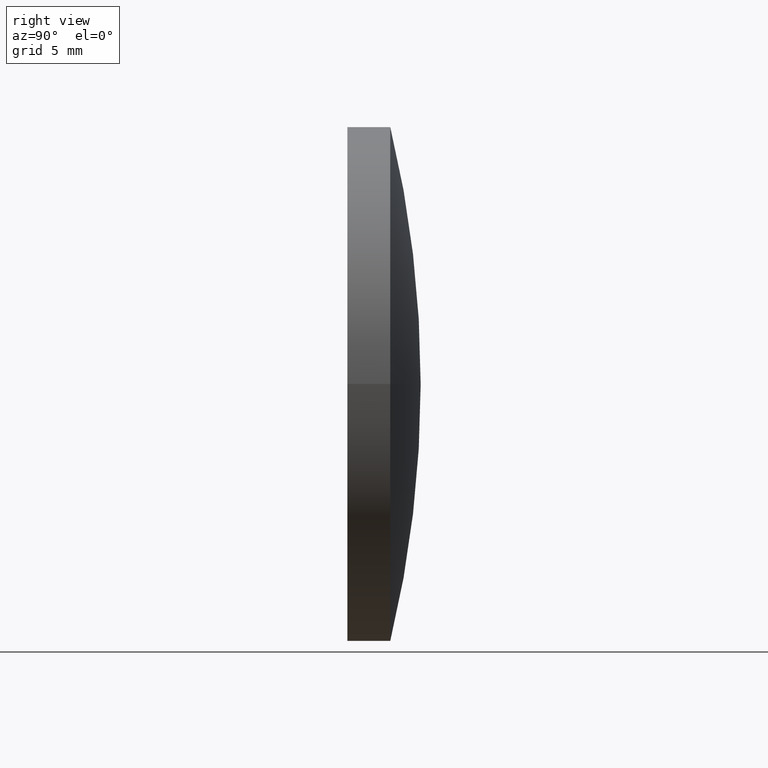
[diagram: clean part render]
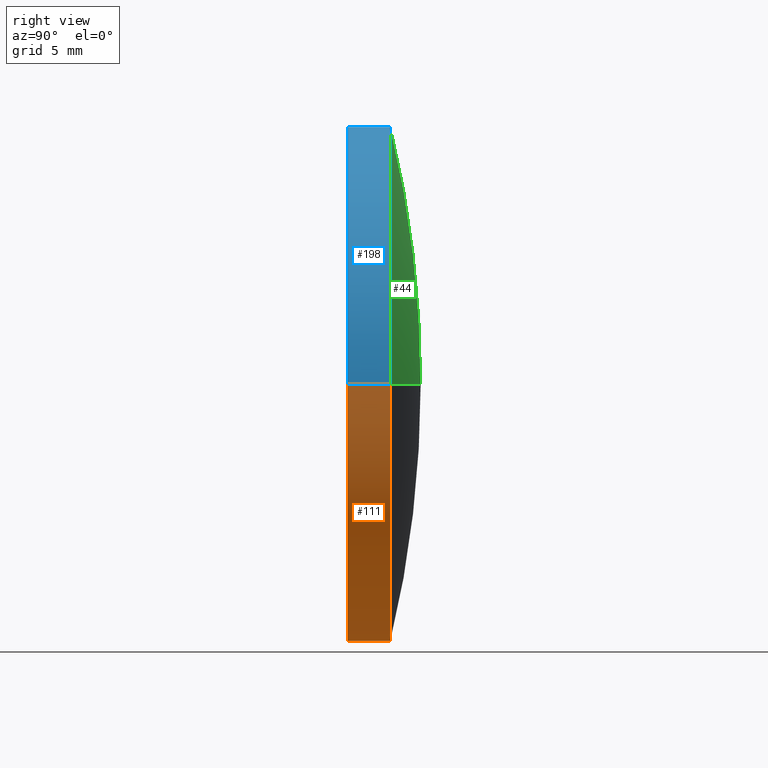
[diagram: same view with three faces highlighted in distinct colors, each labeled with its STEP entity id]
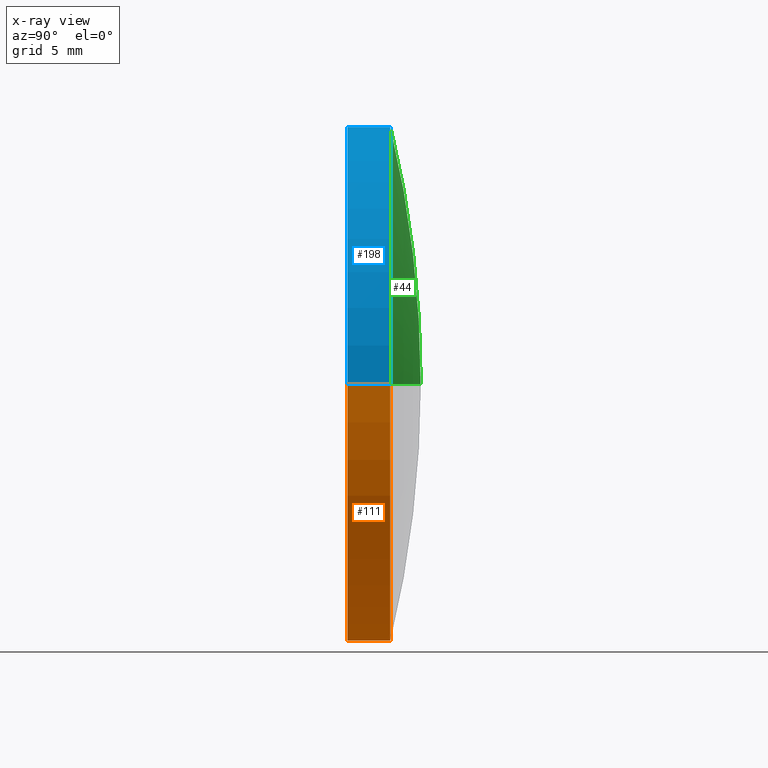
[diagram: x-ray of the same camera — body ghosted, the three highlighted faces saturated]
A machine part, right view with three faces highlighted in distinct colors.
The next image is the same camera in x-ray (body ghosted, the three faces saturated) — at least one of them is partly hidden behind the body in this view.
Their STEP definitions:

[orange] entity #111 — the highlighted cylindrical surface (partial cylindrical patch) has radius 15 mm, axis along (0, 1, -0).
#2 = EDGE_LOOP ( 'NONE', ( #103, #77, #187, #104 ) ) ;
#8 = DIRECTION ( 'NONE',  ( 1.319291633741883713E-17, 1.000000000000000000, -0.000000000000000000 ) ) ;
#22 = CARTESIAN_POINT ( 'NONE',  ( 15.00000000000000178, 4.269999999999999574, 1.836970198721029983E-15 ) ) ;
#26 = AXIS2_PLACEMENT_3D ( 'NONE', #94, #159, #173 ) ;
#34 = LINE ( 'NONE', #177, #133 ) ;
#38 = CYLINDRICAL_SURFACE ( 'NONE', #26, 15.00000000000000178 ) ;
#53 = DIRECTION ( 'NONE',  ( 1.319291633741883713E-17, 1.000000000000000000, -0.000000000000000000 ) ) ;
#56 = CARTESIAN_POINT ( 'NONE',  ( 15.00000000000000000, -1.932617221038089619E-15, 1.836970198721029983E-15 ) ) ;
#63 = VERTEX_POINT ( 'NONE', #112 ) ;
#64 = VERTEX_POINT ( 'NONE', #108 ) ;
#68 = DIRECTION ( 'NONE',  ( 1.319291633741883713E-17, 1.000000000000000000, -0.000000000000000000 ) ) ;
#76 = VERTEX_POINT ( 'NONE', #56 ) ;
#77 = ORIENTED_EDGE ( 'NONE', *, *, #85, .T. ) ;
#79 = LINE ( 'NONE', #22, #139 ) ;
#80 = CARTESIAN_POINT ( 'NONE',  ( 3.298229084354711824E-17, 2.500000000000002220, 0.000000000000000000 ) ) ;
#85 = EDGE_CURVE ( 'NONE', #76, #188, #86, .T. ) ;
#86 = CIRCLE ( 'NONE', #171, 15.00000000000000000 ) ;
#89 = EDGE_CURVE ( 'NONE', #188, #63, #34, .T. ) ;
#90 = CARTESIAN_POINT ( 'NONE',  ( -2.407412430484044816E-32, -1.734723475976807094E-15, 0.000000000000000000 ) ) ;
#94 = CARTESIAN_POINT ( 'NONE',  ( 5.633375276077843094E-17, 4.269999999999999574, 0.000000000000000000 ) ) ;
#103 = ORIENTED_EDGE ( 'NONE', *, *, #124, .F. ) ;
#104 = ORIENTED_EDGE ( 'NONE', *, *, #106, .F. ) ;
#106 = EDGE_CURVE ( 'NONE', #64, #63, #193, .T. ) ;
#108 = CARTESIAN_POINT ( 'NONE',  ( 15.00000000000000533, 2.500000000000002220, 1.836970198721030378E-15 ) ) ;
#110 = DIRECTION ( 'NONE',  ( -1.000000000000000000, 1.319291633741884329E-17, 0.000000000000000000 ) ) ;
#111 = ADVANCED_FACE ( 'NONE', ( #138 ), #38, .T. ) ;
#112 = CARTESIAN_POINT ( 'NONE',  ( -15.00000000000000355, 2.500000000000002220, 0.000000000000000000 ) ) ;
#124 = EDGE_CURVE ( 'NONE', #76, #64, #79, .T. ) ;
#133 = VECTOR ( 'NONE', #53, 1000.000000000000000 ) ;
#138 = FACE_OUTER_BOUND ( 'NONE', #2, .T. ) ;
#139 = VECTOR ( 'NONE', #192, 1000.000000000000000 ) ;
#159 = DIRECTION ( 'NONE',  ( 1.319291633741883713E-17, 1.000000000000000000, -0.000000000000000000 ) ) ;
#160 = AXIS2_PLACEMENT_3D ( 'NONE', #80, #8, #179 ) ;
#162 = CARTESIAN_POINT ( 'NONE',  ( -15.00000000000000000, -1.536829730915524373E-15, 0.000000000000000000 ) ) ;
#171 = AXIS2_PLACEMENT_3D ( 'NONE', #90, #68, #110 ) ;
#173 = DIRECTION ( 'NONE',  ( -1.000000000000000000, 0.000000000000000000, 0.000000000000000000 ) ) ;
#177 = CARTESIAN_POINT ( 'NONE',  ( -15.00000000000000178, 4.269999999999999574, 0.000000000000000000 ) ) ;
#179 = DIRECTION ( 'NONE',  ( -1.000000000000000000, 0.000000000000000000, 0.000000000000000000 ) ) ;
#187 = ORIENTED_EDGE ( 'NONE', *, *, #89, .T. ) ;
#188 = VERTEX_POINT ( 'NONE', #162 ) ;
#192 = DIRECTION ( 'NONE',  ( 1.319291633741883713E-17, 1.000000000000000000, -0.000000000000000000 ) ) ;
#193 = CIRCLE ( 'NONE', #160, 15.00000000000000355 ) ;

[blue] entity #198 — the highlighted cylindrical surface (partial cylindrical patch) has radius 15 mm, axis along (0, 1, -0).
#3 = ORIENTED_EDGE ( 'NONE', *, *, #89, .F. ) ;
#6 = FACE_OUTER_BOUND ( 'NONE', #134, .T. ) ;
#12 = CIRCLE ( 'NONE', #31, 15.00000000000000355 ) ;
#18 = DIRECTION ( 'NONE',  ( 1.319291633741883713E-17, 1.000000000000000000, -0.000000000000000000 ) ) ;
#20 = CYLINDRICAL_SURFACE ( 'NONE', #105, 15.00000000000000178 ) ;
#22 = CARTESIAN_POINT ( 'NONE',  ( 15.00000000000000178, 4.269999999999999574, 1.836970198721029983E-15 ) ) ;
#28 = ORIENTED_EDGE ( 'NONE', *, *, #124, .T. ) ;
#31 = AXIS2_PLACEMENT_3D ( 'NONE', #78, #18, #137 ) ;
#32 = CARTESIAN_POINT ( 'NONE',  ( -2.407412430484044816E-32, -1.734723475976807094E-15, 0.000000000000000000 ) ) ;
#34 = LINE ( 'NONE', #177, #133 ) ;
#37 = DIRECTION ( 'NONE',  ( 1.319291633741883713E-17, 1.000000000000000000, -0.000000000000000000 ) ) ;
#41 = AXIS2_PLACEMENT_3D ( 'NONE', #32, #37, #163 ) ;
#49 = ORIENTED_EDGE ( 'NONE', *, *, #176, .F. ) ;
#53 = DIRECTION ( 'NONE',  ( 1.319291633741883713E-17, 1.000000000000000000, -0.000000000000000000 ) ) ;
#56 = CARTESIAN_POINT ( 'NONE',  ( 15.00000000000000000, -1.932617221038089619E-15, 1.836970198721029983E-15 ) ) ;
#63 = VERTEX_POINT ( 'NONE', #112 ) ;
#64 = VERTEX_POINT ( 'NONE', #108 ) ;
#66 = CARTESIAN_POINT ( 'NONE',  ( 5.633375276077843094E-17, 4.269999999999999574, 0.000000000000000000 ) ) ;
#72 = CIRCLE ( 'NONE', #41, 15.00000000000000000 ) ;
#76 = VERTEX_POINT ( 'NONE', #56 ) ;
#78 = CARTESIAN_POINT ( 'NONE',  ( 3.298229084354711824E-17, 2.500000000000002220, 0.000000000000000000 ) ) ;
#79 = LINE ( 'NONE', #22, #139 ) ;
#89 = EDGE_CURVE ( 'NONE', #188, #63, #34, .T. ) ;
#91 = DIRECTION ( 'NONE',  ( -1.000000000000000000, 0.000000000000000000, 0.000000000000000000 ) ) ;
#105 = AXIS2_PLACEMENT_3D ( 'NONE', #66, #194, #91 ) ;
#108 = CARTESIAN_POINT ( 'NONE',  ( 15.00000000000000533, 2.500000000000002220, 1.836970198721030378E-15 ) ) ;
#112 = CARTESIAN_POINT ( 'NONE',  ( -15.00000000000000355, 2.500000000000002220, 0.000000000000000000 ) ) ;
#121 = EDGE_CURVE ( 'NONE', #188, #76, #72, .T. ) ;
#124 = EDGE_CURVE ( 'NONE', #76, #64, #79, .T. ) ;
#125 = ORIENTED_EDGE ( 'NONE', *, *, #121, .T. ) ;
#133 = VECTOR ( 'NONE', #53, 1000.000000000000000 ) ;
#134 = EDGE_LOOP ( 'NONE', ( #125, #28, #49, #3 ) ) ;
#137 = DIRECTION ( 'NONE',  ( -1.000000000000000000, 0.000000000000000000, 0.000000000000000000 ) ) ;
#139 = VECTOR ( 'NONE', #192, 1000.000000000000000 ) ;
#162 = CARTESIAN_POINT ( 'NONE',  ( -15.00000000000000000, -1.536829730915524373E-15, 0.000000000000000000 ) ) ;
#163 = DIRECTION ( 'NONE',  ( -1.000000000000000000, 1.319291633741884329E-17, 0.000000000000000000 ) ) ;
#176 = EDGE_CURVE ( 'NONE', #63, #64, #12, .T. ) ;
#177 = CARTESIAN_POINT ( 'NONE',  ( -15.00000000000000178, 4.269999999999999574, 0.000000000000000000 ) ) ;
#188 = VERTEX_POINT ( 'NONE', #162 ) ;
#192 = DIRECTION ( 'NONE',  ( 1.319291633741883713E-17, 1.000000000000000000, -0.000000000000000000 ) ) ;
#194 = DIRECTION ( 'NONE',  ( 1.319291633741883713E-17, 1.000000000000000000, -0.000000000000000000 ) ) ;
#198 = ADVANCED_FACE ( 'NONE', ( #6 ), #20, .T. ) ;

[green] entity #44 — the highlighted toroidal blend (fillet) surface has major radius 0.0125 mm and minor (blend) radius 64.55 mm.
#5 = CARTESIAN_POINT ( 'NONE',  ( 0.01246985787228902659, -60.27999879552782403, 0.000000000000000000 ) ) ;
#7 = AXIS2_PLACEMENT_3D ( 'NONE', #143, #127, #109 ) ;
#10 = TOROIDAL_SURFACE ( 'NONE', #130, -0.01246985787228982283, 64.54999999999999716 ) ;
#12 = CIRCLE ( 'NONE', #31, 15.00000000000000355 ) ;
#15 = DIRECTION ( 'NONE',  ( -1.000000000000000000, 1.319291633741883713E-17, 0.000000000000000000 ) ) ;
#16 = VERTEX_POINT ( 'NONE', #151 ) ;
#17 = DIRECTION ( 'NONE',  ( -1.000000000000000000, 0.000000000000000000, 0.000000000000000000 ) ) ;
#18 = DIRECTION ( 'NONE',  ( 1.319291633741883713E-17, 1.000000000000000000, -0.000000000000000000 ) ) ;
#30 = DIRECTION ( 'NONE',  ( 1.319291633741883713E-17, 1.000000000000000000, -0.000000000000000000 ) ) ;
#31 = AXIS2_PLACEMENT_3D ( 'NONE', #78, #18, #137 ) ;
#44 = ADVANCED_FACE ( 'NONE', ( #190 ), #10, .T. ) ;
#62 = EDGE_CURVE ( 'NONE', #63, #16, #178, .T. ) ;
#63 = VERTEX_POINT ( 'NONE', #112 ) ;
#64 = VERTEX_POINT ( 'NONE', #108 ) ;
#75 = DIRECTION ( 'NONE',  ( -0.000000000000000000, 0.000000000000000000, -1.000000000000000000 ) ) ;
#78 = CARTESIAN_POINT ( 'NONE',  ( 3.298229084354711824E-17, 2.500000000000002220, 0.000000000000000000 ) ) ;
#102 = ORIENTED_EDGE ( 'NONE', *, *, #62, .F. ) ;
#108 = CARTESIAN_POINT ( 'NONE',  ( 15.00000000000000533, 2.500000000000002220, 1.836970198721030378E-15 ) ) ;
#109 = DIRECTION ( 'NONE',  ( 1.000000000000000000, 0.000000000000000000, 1.224646799147352961E-16 ) ) ;
#112 = CARTESIAN_POINT ( 'NONE',  ( -15.00000000000000355, 2.500000000000002220, 0.000000000000000000 ) ) ;
#127 = DIRECTION ( 'NONE',  ( -1.224646799147353207E-16, 1.615666276403880151E-33, 1.000000000000000000 ) ) ;
#130 = AXIS2_PLACEMENT_3D ( 'NONE', #172, #30, #15 ) ;
#137 = DIRECTION ( 'NONE',  ( -1.000000000000000000, 0.000000000000000000, 0.000000000000000000 ) ) ;
#143 = CARTESIAN_POINT ( 'NONE',  ( -0.01246985787229061907, -60.27999879552782403, -1.527117152912215589E-18 ) ) ;
#149 = ORIENTED_EDGE ( 'NONE', *, *, #176, .T. ) ;
#151 = CARTESIAN_POINT ( 'NONE',  ( -1.090978436063538837E-15, 4.269999999999996021, 0.000000000000000000 ) ) ;
#153 = ORIENTED_EDGE ( 'NONE', *, *, #158, .T. ) ;
#158 = EDGE_CURVE ( 'NONE', #64, #16, #199, .T. ) ;
#172 = CARTESIAN_POINT ( 'NONE',  ( -7.962109704190423187E-16, -60.27999879552782403, 0.000000000000000000 ) ) ;
#174 = AXIS2_PLACEMENT_3D ( 'NONE', #5, #75, #17 ) ;
#176 = EDGE_CURVE ( 'NONE', #63, #64, #12, .T. ) ;
#178 = CIRCLE ( 'NONE', #174, 64.54999999999999716 ) ;
#190 = FACE_OUTER_BOUND ( 'NONE', #191, .T. ) ;
#191 = EDGE_LOOP ( 'NONE', ( #149, #153, #102 ) ) ;
#199 = CIRCLE ( 'NONE', #7, 64.54999999999999716 ) ;